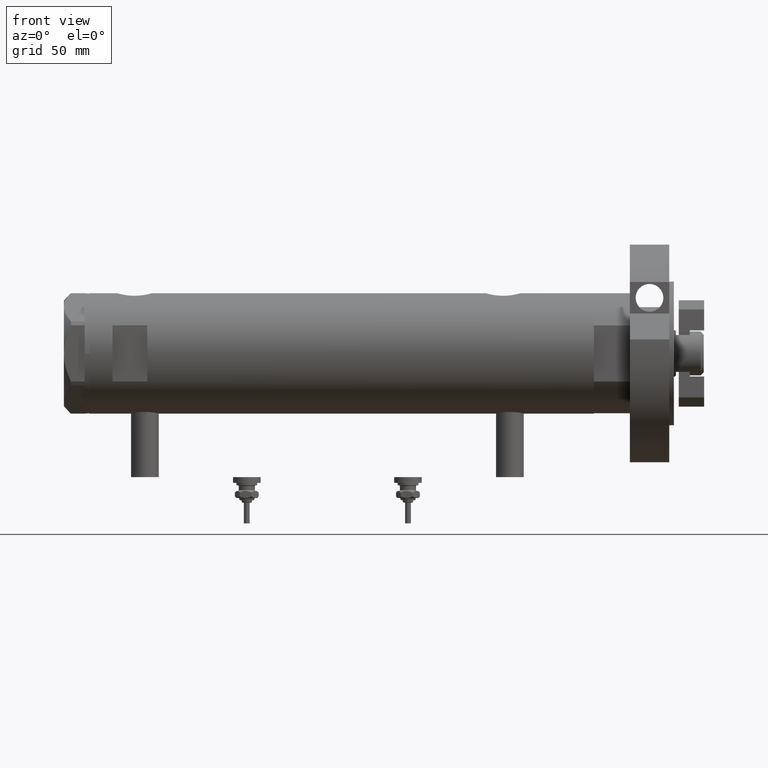
[diagram: clean part render]
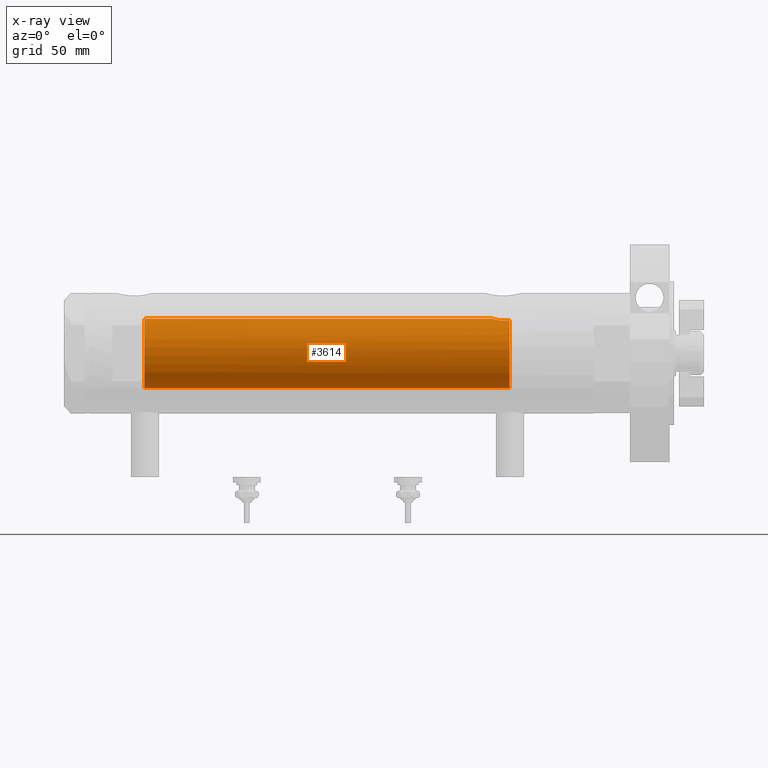
[diagram: x-ray — body ghosted, one internal face saturated and labeled with its STEP entity id]
A machine part, front view, then the same camera in x-ray: the body is ghosted and one INTERNAL B-rep face — a face not visible from any outside direction — is saturated and labeled: STEP entity #3614.
In plain terms, the highlighted cylindrical surface (edge-blend (fillet) strip) has radius 15 mm, axis along (1, 0, -0).
Its self-contained STEP definition (entity closure, byte-faithful):
#49 = CARTESIAN_POINT ( 'NONE',  ( 14.23846660849503110, -4.718934182878724570, -70.95401121469809880 ) ) ;
#96 = CARTESIAN_POINT ( 'NONE',  ( 15.00000000000000711, -0.3999014018875933218, 84.58500000000002217 ) ) ;
#598 = CARTESIAN_POINT ( 'NONE',  ( 14.20926245015525957, -4.806160851464704287, -68.96377327795615031 ) ) ;
#641 = CARTESIAN_POINT ( 'NONE',  ( 14.30772250772360366, -4.505024017690372418, -67.90010806953213773 ) ) ;
#676 = VECTOR ( 'NONE', #3094, 1000.000000000000000 ) ;
#727 = CARTESIAN_POINT ( 'NONE',  ( 14.42775250319759728, -4.105775281508738495, -72.36911445102909113 ) ) ;
#800 = EDGE_CURVE ( 'NONE', #4860, #5787, #6952, .T. ) ;
#868 = CARTESIAN_POINT ( 'NONE',  ( 14.82638779339053947, -2.275571356824482638, 85.15000000000000568 ) ) ;
#894 = AXIS2_PLACEMENT_3D ( 'NONE', #5910, #1156, #1236 ) ;
#908 = CARTESIAN_POINT ( 'NONE',  ( 14.96064712090283955, -1.106639041422192049, -65.00738179736373468 ) ) ;
#1003 = CARTESIAN_POINT ( 'NONE',  ( 0.000000000000000000, 0.000000000000000000, -72.54999999999999716 ) ) ;
#1060 = ORIENTED_EDGE ( 'NONE', *, *, #7379, .F. ) ;
#1156 = DIRECTION ( 'NONE',  ( 0.000000000000000000, 0.000000000000000000, 1.000000000000000000 ) ) ;
#1231 = ORIENTED_EDGE ( 'NONE', *, *, #800, .T. ) ;
#1236 = DIRECTION ( 'NONE',  ( 1.000000000000000000, 0.000000000000000000, 0.000000000000000000 ) ) ;
#1292 = CARTESIAN_POINT ( 'NONE',  ( 14.81710879718118079, -2.343063746046463613, -65.48067662538953471 ) ) ;
#1422 = CARTESIAN_POINT ( 'NONE',  ( 15.00000000000000000, 5.959273473684245944E-16, -64.88500000000000512 ) ) ;
#1516 = CARTESIAN_POINT ( 'NONE',  ( 14.87720562886503828, -1.924385875533404233, 84.97741675737692901 ) ) ;
#1938 = EDGE_CURVE ( 'NONE', #4860, #8612, #3522, .T. ) ;
#1955 = CARTESIAN_POINT ( 'NONE',  ( 14.64727859494137263, -3.248701865452405801, -66.10174013696655493 ) ) ;
#2029 = CARTESIAN_POINT ( 'NONE',  ( 14.82638779339053947, -2.275571356824482638, 85.15000000000000568 ) ) ;
#2075 = CARTESIAN_POINT ( 'NONE',  ( 14.39424372609267877, -4.221002267729139668, -72.17893131093291004 ) ) ;
#2100 = CARTESIAN_POINT ( 'NONE',  ( 15.00000000000000000, 0.000000000000000000, 84.58500000000000796 ) ) ;
#2115 = CARTESIAN_POINT ( 'NONE',  ( 14.19858338301463085, -4.837406781463694294, -69.18614104090498529 ) ) ;
#2123 = CARTESIAN_POINT ( 'NONE',  ( 14.98404828787190901, -0.7909490205761859904, 84.63356230794190083 ) ) ;
#2164 = CARTESIAN_POINT ( 'NONE',  ( 14.92307637240704032, -1.532123959568890692, -65.12726557582080034 ) ) ;
#2206 = CARTESIAN_POINT ( 'NONE',  ( 0.000000000000000000, 0.000000000000000000, 108.9499999999999886 ) ) ;
#2514 = CARTESIAN_POINT ( 'NONE',  ( -15.00000000000000000, 0.000000000000000000, 108.9499999999999886 ) ) ;
#2593 = VERTEX_POINT ( 'NONE', #7957 ) ;
#2691 = CARTESIAN_POINT ( 'NONE',  ( 14.33349657381506148, -4.422893686125038748, -71.78827841538880250 ) ) ;
#2777 = DIRECTION ( 'NONE',  ( -0.000000000000000000, -0.000000000000000000, -1.000000000000000000 ) ) ;
#2835 = DIRECTION ( 'NONE',  ( -1.000000000000000000, 0.000000000000000000, 0.000000000000000000 ) ) ;
#2926 = CARTESIAN_POINT ( 'NONE',  ( 14.99508877558422881, -0.4434836953032569862, -64.90007684727665094 ) ) ;
#2974 = CARTESIAN_POINT ( 'NONE',  ( 15.00000000000000000, 1.836970198721029589E-15, 108.9499999999999886 ) ) ;
#3094 = DIRECTION ( 'NONE',  ( -0.000000000000000000, -0.000000000000000000, -1.000000000000000000 ) ) ;
#3431 = FACE_OUTER_BOUND ( 'NONE', #3584, .T. ) ;
#3432 = CARTESIAN_POINT ( 'NONE',  ( 14.30602371879160728, -4.510400617436905790, -71.58665028800270136 ) ) ;
#3517 = CYLINDRICAL_SURFACE ( 'NONE', #4497, 15.00000000000000000 ) ;
#3522 = B_SPLINE_CURVE_WITH_KNOTS ( 'NONE', 3,
 ( #4095, #96, #2123, #4838, #7529, #1516, #6241, #868 ),
 .UNSPECIFIED., .F., .F.,
 ( 4, 2, 2, 4 ),
 ( 0.000000000000000000, 0.001182100180564269864, 0.001773150270846399592, 0.002364200361128529319 ),
 .UNSPECIFIED. ) ;
#3584 = EDGE_LOOP ( 'NONE', ( #8267, #1231, #7945, #6679, #1060, #4675 ) ) ;
#3614 = ADVANCED_FACE ( 'NONE', ( #3431 ), #3517, .F. ) ;
#3972 = CARTESIAN_POINT ( 'NONE',  ( 14.84733308118440398, -2.144376633039211999, -65.37751912952717248 ) ) ;
#4086 = CARTESIAN_POINT ( 'NONE',  ( 14.46277203719950855, -3.978470183374511304, -72.54999999999999716 ) ) ;
#4095 = CARTESIAN_POINT ( 'NONE',  ( 15.00000000000000000, 0.000000000000000000, 84.58500000000000796 ) ) ;
#4404 = CARTESIAN_POINT ( 'NONE',  ( -15.00000000000000000, 0.000000000000000000, -72.54999999999999716 ) ) ;
#4497 = AXIS2_PLACEMENT_3D ( 'NONE', #2206, #2777, #7475 ) ;
#4619 = CARTESIAN_POINT ( 'NONE',  ( 14.33594561531104006, -4.414979644548150617, -67.69453393419244946 ) ) ;
#4656 = CIRCLE ( 'NONE', #894, 15.00000000000000000 ) ;
#4675 = ORIENTED_EDGE ( 'NONE', *, *, #5072, .T. ) ;
#4783 = CARTESIAN_POINT ( 'NONE',  ( 14.25977760983849763, -4.654557688538883298, -68.31736805897654108 ) ) ;
#4787 = CARTESIAN_POINT ( 'NONE',  ( 14.46277203719950855, -3.978470183374511304, -72.54999999999999716 ) ) ;
#4838 = CARTESIAN_POINT ( 'NONE',  ( 14.93900636919600089, -1.364886281976675164, 84.77622504971311912 ) ) ;
#4860 = VERTEX_POINT ( 'NONE', #2100 ) ;
#4924 = CARTESIAN_POINT ( 'NONE',  ( 15.00000000000000888, -0.2216692655473423146, -64.88500000000003354 ) ) ;
#5072 = EDGE_CURVE ( 'NONE', #2593, #8612, #4656, .T. ) ;
#5104 = LINE ( 'NONE', #2514, #7907 ) ;
#5120 = B_SPLINE_CURVE_WITH_KNOTS ( 'NONE', 3,
 ( #4086, #727, #2075, #2691, #3432, #6667, #49, #6630, #5394, #6587, #8096, #2115, #598, #6758, #4783, #641, #4619, #8629, #7966, #1955, #7296, #1292, #3972, #8236, #2164, #908, #6847, #2926, #4924, #7567 ),
 .UNSPECIFIED., .F., .F.,
 ( 4, 2, 2, 2, 2, 2, 2, 2, 2, 2, 2, 2, 2, 2, 4 ),
 ( 0.004672505804584295430, 0.005337629501999315365, 0.006002753199414335300, 0.006667876896829355235, 0.007333000594244375170, 0.007998124291659395105, 0.008663247989074415040, 0.009328371686489433240, 0.009993495383904454910, 0.01132374277873445662, 0.01265399017356445832, 0.01331911387097945050, 0.01398423756839444268, 0.01464936126580943312, 0.01531448496322442530 ),
 .UNSPECIFIED. ) ;
#5184 = DIRECTION ( 'NONE',  ( -0.000000000000000000, -0.000000000000000000, -1.000000000000000000 ) ) ;
#5394 = CARTESIAN_POINT ( 'NONE',  ( 14.19797987272029793, -4.839174951492910992, -70.29741451501413962 ) ) ;
#5625 = AXIS2_PLACEMENT_3D ( 'NONE', #1003, #8245, #2835 ) ;
#5787 = VERTEX_POINT ( 'NONE', #1422 ) ;
#5834 = EDGE_CURVE ( 'NONE', #8174, #6438, #7172, .T. ) ;
#5910 = CARTESIAN_POINT ( 'NONE',  ( 0.000000000000000000, 0.000000000000000000, 85.15000000000000568 ) ) ;
#6241 = CARTESIAN_POINT ( 'NONE',  ( 14.85289483991916981, -2.102865829523694163, 85.05860377881604961 ) ) ;
#6438 = VERTEX_POINT ( 'NONE', #4404 ) ;
#6587 = CARTESIAN_POINT ( 'NONE',  ( 14.18781489734108270, -4.868896704194244585, -69.85545969036061820 ) ) ;
#6630 = CARTESIAN_POINT ( 'NONE',  ( 14.20819413761016037, -4.809312895991457282, -70.51713251522167525 ) ) ;
#6667 = CARTESIAN_POINT ( 'NONE',  ( 14.25856516724843637, -4.658255869285517825, -71.17044016644935311 ) ) ;
#6679 = ORIENTED_EDGE ( 'NONE', *, *, #5834, .T. ) ;
#6758 = CARTESIAN_POINT ( 'NONE',  ( 14.23984499268011561, -4.714778477509576682, -68.53008258614765680 ) ) ;
#6847 = CARTESIAN_POINT ( 'NONE',  ( 14.97537530859972321, -0.8874117095427768165, -64.96137464055831856 ) ) ;
#6952 = LINE ( 'NONE', #2974, #676 ) ;
#7172 = CIRCLE ( 'NONE', #5625, 15.00000000000000000 ) ;
#7296 = CARTESIAN_POINT ( 'NONE',  ( 14.72015646623406049, -2.909233045280597896, -65.82572079632734585 ) ) ;
#7379 = EDGE_CURVE ( 'NONE', #2593, #6438, #5104, .T. ) ;
#7475 = DIRECTION ( 'NONE',  ( -1.000000000000000000, 0.000000000000000000, 0.000000000000000000 ) ) ;
#7529 = CARTESIAN_POINT ( 'NONE',  ( 14.92029983160078288, -1.555365312915180320, 84.83609703141412695 ) ) ;
#7544 = EDGE_CURVE ( 'NONE', #8174, #5787, #5120, .T. ) ;
#7567 = CARTESIAN_POINT ( 'NONE',  ( 15.00000000000000000, 5.959273473684245944E-16, -64.88500000000000512 ) ) ;
#7907 = VECTOR ( 'NONE', #5184, 1000.000000000000000 ) ;
#7945 = ORIENTED_EDGE ( 'NONE', *, *, #7544, .F. ) ;
#7957 = CARTESIAN_POINT ( 'NONE',  ( -15.00000000000000000, 0.000000000000000000, 85.15000000000000568 ) ) ;
#7966 = CARTESIAN_POINT ( 'NONE',  ( 14.49994286062941384, -3.853373987417223034, -66.74743896782911179 ) ) ;
#8096 = CARTESIAN_POINT ( 'NONE',  ( 14.18786347641750112, -4.868757996482119488, -69.63322300400297138 ) ) ;
#8174 = VERTEX_POINT ( 'NONE', #4787 ) ;
#8236 = CARTESIAN_POINT ( 'NONE',  ( 14.90017778876745247, -1.739641523727897710, -65.20130925695124802 ) ) ;
#8245 = DIRECTION ( 'NONE',  ( 0.000000000000000000, 0.000000000000000000, -1.000000000000000000 ) ) ;
#8267 = ORIENTED_EDGE ( 'NONE', *, *, #1938, .F. ) ;
#8612 = VERTEX_POINT ( 'NONE', #2029 ) ;
#8629 = CARTESIAN_POINT ( 'NONE',  ( 14.42796883436190392, -4.108435602805834641, -67.10726922759032220 ) ) ;